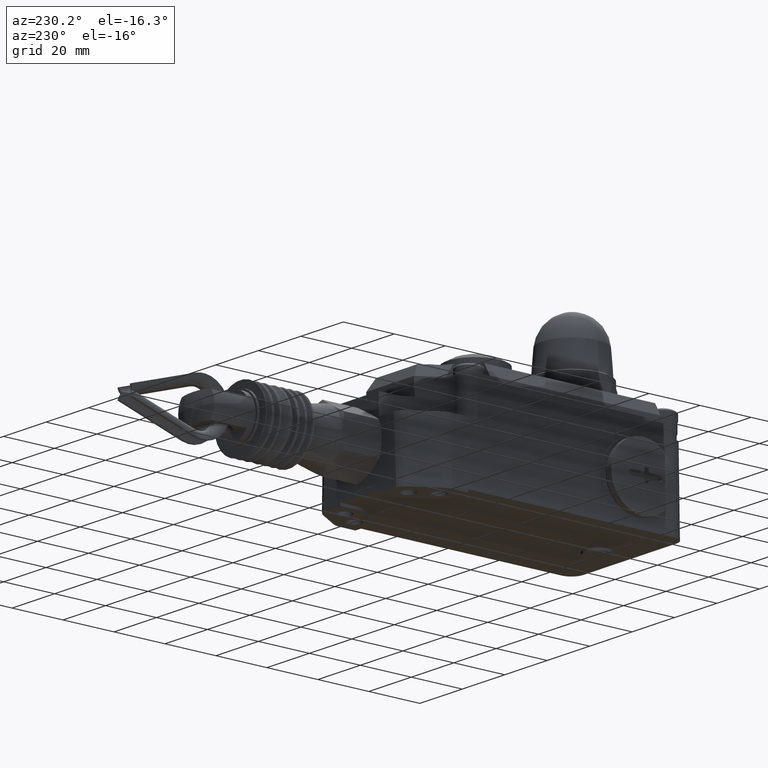
[diagram: clean part render]
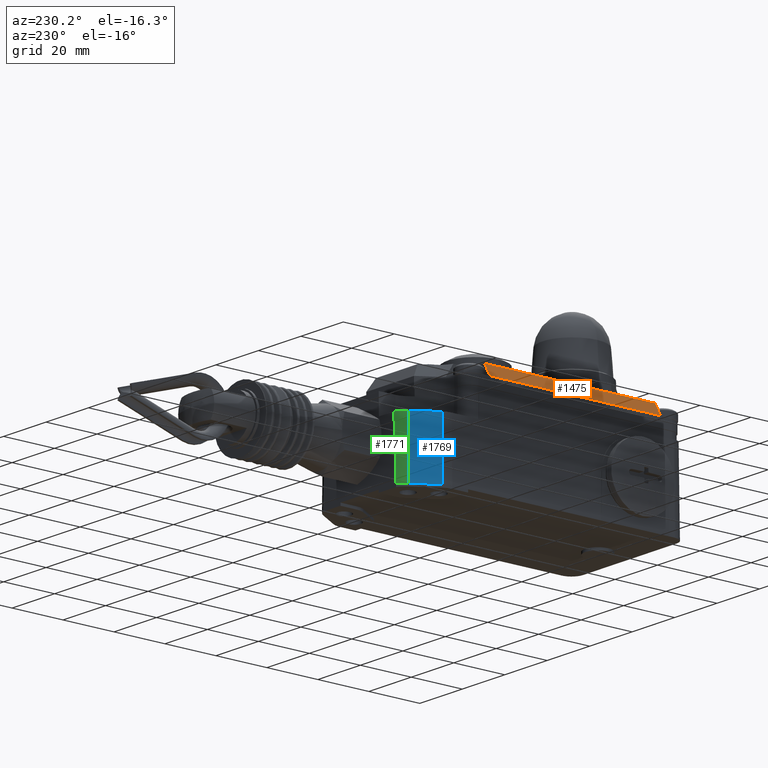
[diagram: same view with three faces highlighted in distinct colors, each labeled with its STEP entity id]
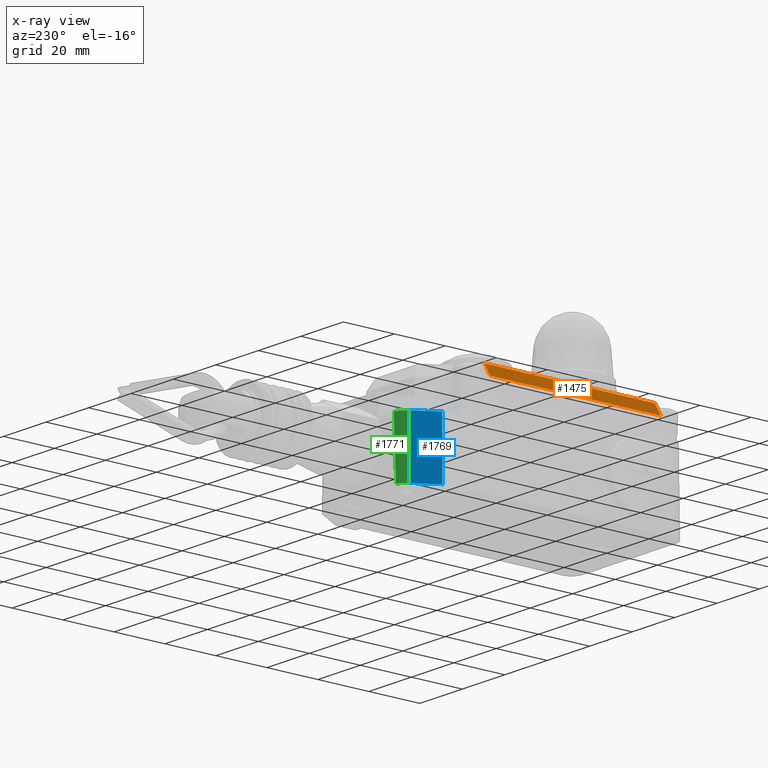
[diagram: x-ray of the same camera — body ghosted, the three highlighted faces saturated]
A machine part, auxiliary view with three faces highlighted in distinct colors.
The next image is the same camera in x-ray (body ghosted, the three faces saturated) — at least one of them is partly hidden behind the body in this view.
Their STEP definitions:

[orange] entity #1475 — the highlighted planar face has unit normal (-0.866, 0, 0.5).
#1475=ADVANCED_FACE('',(#3117),#3118,.T.);
#3117=FACE_OUTER_BOUND('',#4927,.T.);
#3118=PLANE('',#4928);
#4927=EDGE_LOOP('',(#9135,#9136,#9137,#9138));
#4928=AXIS2_PLACEMENT_3D('',#9139,#9140,#9141);
#9135=ORIENTED_EDGE('',*,*,#11713,.T.);
#9136=ORIENTED_EDGE('',*,*,#11999,.T.);
#9137=ORIENTED_EDGE('',*,*,#12187,.T.);
#9138=ORIENTED_EDGE('',*,*,#11701,.F.);
#9139=CARTESIAN_POINT('',(5.9104298117,6.039999999966,38.5));
#9140=DIRECTION('',(-0.866025403784438,-0.0,0.500000000000001));
#9141=DIRECTION('',(-0.500000000000001,0.0,-0.866025403784438));
#11701=EDGE_CURVE('',#14257,#14259,#14260,.T.);
#11713=EDGE_CURVE('',#14257,#14274,#14276,.T.);
#11999=EDGE_CURVE('',#14274,#14684,#14686,.T.);
#12187=EDGE_CURVE('',#14684,#14259,#14929,.T.);
#14257=VERTEX_POINT('',#17899);
#14259=VERTEX_POINT('',#17902);
#14260=LINE('',#17903,#17904);
#14274=VERTEX_POINT('',#17925);
#14276=LINE('',#17928,#17929);
#14684=VERTEX_POINT('',#18509);
#14686=LINE('',#18512,#18513);
#14929=LINE('',#19008,#19009);
#17899=CARTESIAN_POINT('',(5.9104298117,10.54,38.5));
#17902=CARTESIAN_POINT('',(5.9104298117,77.54,38.5));
#17903=CARTESIAN_POINT('',(5.9104298117,6.04000000000001,38.5));
#17904=VECTOR('',#21676,1.0);
#17925=CARTESIAN_POINT('',(8.5085060230533,10.54,43.0));
#17928=CARTESIAN_POINT('',(5.5041798117021,10.54,37.7963543594288));
#17929=VECTOR('',#21685,1.0);
#18509=CARTESIAN_POINT('',(8.5085060230533,77.54,43.0));
#18512=CARTESIAN_POINT('',(8.5085060230533,6.04000000000001,43.0));
#18513=VECTOR('',#22009,1.0);
#19008=CARTESIAN_POINT('',(5.8166798117,77.54,38.3376202367904));
#19009=VECTOR('',#22199,1.0);
#21676=DIRECTION('',(0.0,1.0,0.0));
#21685=DIRECTION('',(0.500000000000001,0.0,0.866025403784438));
#22009=DIRECTION('',(0.0,1.0,0.0));
#22199=DIRECTION('',(-0.500000000000001,0.0,-0.866025403784438));

[blue] entity #1769 — the highlighted planar face has unit normal (-0.8479, 0.53, 0.0131).
#1769=ADVANCED_FACE('',(#3579),#3580,.T.);
#3579=FACE_OUTER_BOUND('',#5389,.T.);
#3580=PLANE('',#5390);
#5389=EDGE_LOOP('',(#10521,#10522,#10523,#10524));
#5390=AXIS2_PLACEMENT_3D('',#10525,#10526,#10527);
#10521=ORIENTED_EDGE('',*,*,#12651,.T.);
#10522=ORIENTED_EDGE('',*,*,#12671,.F.);
#10523=ORIENTED_EDGE('',*,*,#12577,.F.);
#10524=ORIENTED_EDGE('',*,*,#12669,.T.);
#10525=CARTESIAN_POINT('',(6.2813329749974,95.8751810893484,1.0));
#10526=DIRECTION('',(-0.847925653930967,0.529953533711702,0.0130895955713447));
#10527=DIRECTION('',(-0.015435358180122,0.0,-0.999880867762681));
#12577=EDGE_CURVE('',#15490,#15492,#15493,.T.);
#12651=EDGE_CURVE('',#15586,#15584,#15587,.T.);
#12669=EDGE_CURVE('',#15490,#15586,#15606,.T.);
#12671=EDGE_CURVE('',#15492,#15584,#15608,.T.);
#15490=VERTEX_POINT('',#19874);
#15492=VERTEX_POINT('',#19876);
#15493=LINE('',#19877,#19878);
#15584=VERTEX_POINT('',#20006);
#15586=VERTEX_POINT('',#20008);
#15587=LINE('',#20009,#20010);
#15606=LINE('',#20037,#20038);
#15608=LINE('',#20040,#20041);
#19874=CARTESIAN_POINT('',(6.2813329749974,95.8751810893484,1.0));
#19876=CARTESIAN_POINT('',(11.7477573378,104.6214600698,1.0));
#19877=CARTESIAN_POINT('',(6.281332975,95.8751810894,1.0));
#19878=VECTOR('',#22638,1.0);
#20006=CARTESIAN_POINT('',(12.0030781731906,104.461884547686,24.0));
#20008=CARTESIAN_POINT('',(6.5366538103624,95.7156055672438,24.0));
#20009=CARTESIAN_POINT('',(11.7408623195859,104.04233918189,24.0));
#20010=VECTOR('',#22703,1.0);
#20037=CARTESIAN_POINT('',(6.2813329749974,95.8751810893484,1.0));
#20038=VECTOR('',#22715,1.0);
#20040=CARTESIAN_POINT('',(11.7477573378,104.6214600698,1.0));
#20041=VECTOR('',#22716,1.0);
#22638=DIRECTION('',(0.529998940006666,0.847998304002909,0.0));
#22703=DIRECTION('',(0.529998940006666,0.847998304002909,0.0));
#22715=DIRECTION('',(0.011099954843895,-0.00693747177749788,0.999914327574018));
#22716=DIRECTION('',(0.0110999548450119,-0.0069374717779142,0.999914327574002));

[green] entity #1771 — the highlighted conical surface has half-angle 0.75 deg.
#1771=ADVANCED_FACE('',(#3582),#3583,.T.);
#3582=FACE_OUTER_BOUND('',#5392,.T.);
#3583=CONICAL_SURFACE('',#5393,5.99999999989999,0.0130899693899599);
#5392=EDGE_LOOP('',(#10529,#10530,#10531,#10532));
#5393=AXIS2_PLACEMENT_3D('',#10533,#10534,#10535);
#10529=ORIENTED_EDGE('',*,*,#12493,.T.);
#10530=ORIENTED_EDGE('',*,*,#12578,.T.);
#10531=ORIENTED_EDGE('',*,*,#12671,.T.);
#10532=ORIENTED_EDGE('',*,*,#12650,.T.);
#10533=CARTESIAN_POINT('',(16.8357471618,101.4414664299,1.0));
#10534=DIRECTION('',(-0.0,-0.0,-1.0));
#10535=DIRECTION('',(-1.74586271368631E-012,1.0,0.0));
#12493=EDGE_CURVE('',#15357,#15355,#15358,.T.);
#12578=EDGE_CURVE('',#15355,#15492,#15494,.T.);
#12650=EDGE_CURVE('',#15584,#15357,#15585,.T.);
#12671=EDGE_CURVE('',#15492,#15584,#15608,.T.);
#15355=VERTEX_POINT('',#19684);
#15357=VERTEX_POINT('',#19687);
#15358=(B_SPLINE_CURVE(2,(#19689,#19690,#19691),.UNSPECIFIED.,.F.,.F.)B_SPLINE_CURVE_WITH_KNOTS((3,3),(3.48365118176728E-032,23.0266113970129),.UNSPECIFIED.)RATIONAL_B_SPLINE_CURVE((1.0,1.00439282536408,1.0))BOUNDED_CURVE()REPRESENTATION_ITEM('')GEOMETRIC_REPRESENTATION_ITEM()CURVE());
#15492=VERTEX_POINT('',#19876);
#15494=CIRCLE('',#19879,5.99999999989999);
#15584=VERTEX_POINT('',#20006);
#15585=CIRCLE('',#20007,5.69891350694878);
#15608=LINE('',#20040,#20041);
#19684=CARTESIAN_POINT('',(14.6778727763773,107.04,1.0));
#19687=CARTESIAN_POINT('',(15.7708354170311,107.04,24.0));
#19689=CARTESIAN_POINT('',(15.7708354170311,107.04,24.0));
#19690=CARTESIAN_POINT('',(15.2384184920096,107.04,16.400063441934));
#19691=CARTESIAN_POINT('',(14.6778727763773,107.04,1.0));
#19876=CARTESIAN_POINT('',(11.7477573378,104.6214600698,1.0));
#19879=AXIS2_PLACEMENT_3D('',#22639,#22640,#22641);
#20006=CARTESIAN_POINT('',(12.0030781731906,104.461884547686,24.0));
#20007=AXIS2_PLACEMENT_3D('',#22700,#22701,#22702);
#20040=CARTESIAN_POINT('',(11.7477573378,104.6214600698,1.0));
#20041=VECTOR('',#22716,1.0);
#22639=CARTESIAN_POINT('',(16.8357471618,101.4414664299,1.0));
#22640=DIRECTION('',(0.0,0.0,1.0));
#22641=DIRECTION('',(-1.74586271368631E-012,1.0,0.0));
#22700=CARTESIAN_POINT('',(16.8357471618,101.4414664299,24.0));
#22701=DIRECTION('',(0.0,0.0,-1.0));
#22702=DIRECTION('',(-1.74586271368631E-012,1.0,0.0));
#22716=DIRECTION('',(0.0110999548450119,-0.0069374717779142,0.999914327574002));